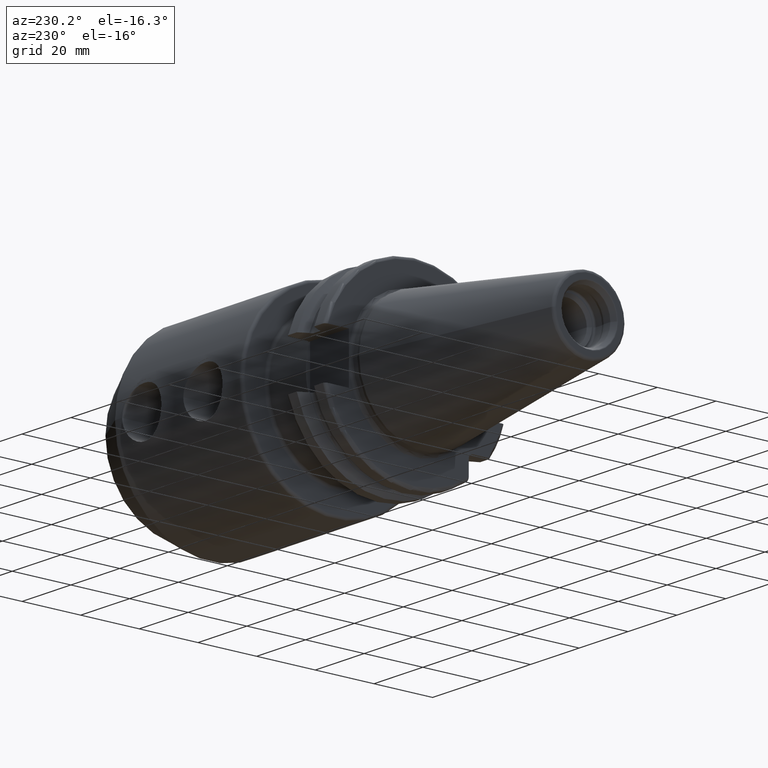
[diagram: clean part render]
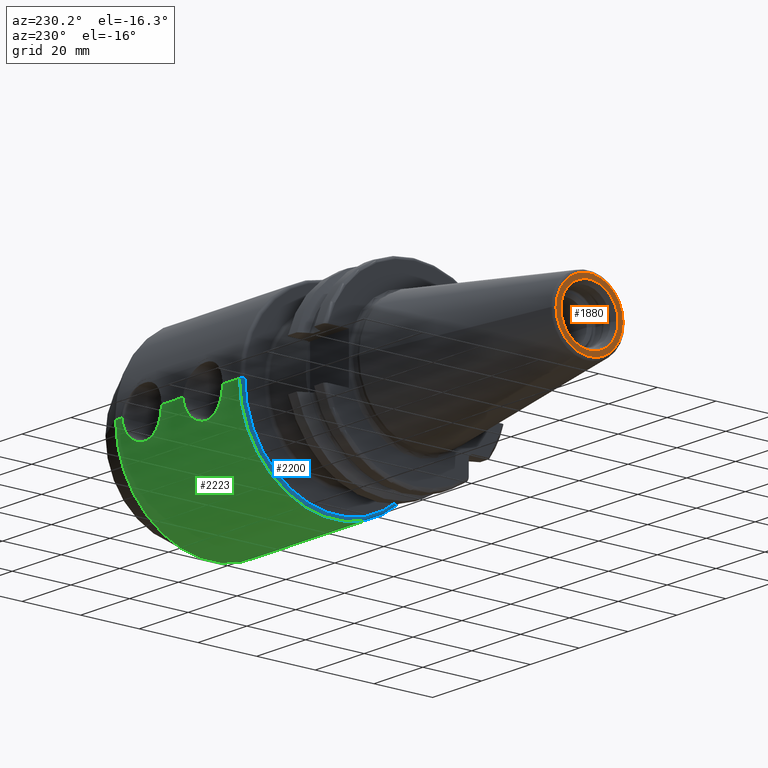
[diagram: same view with three faces highlighted in distinct colors, each labeled with its STEP entity id]
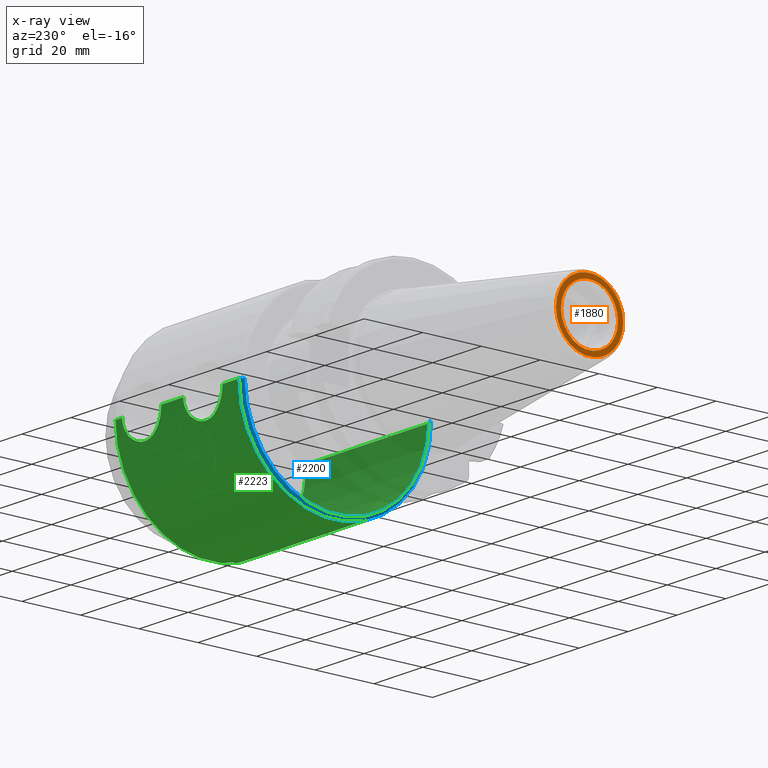
[diagram: x-ray of the same camera — body ghosted, the three highlighted faces saturated]
A machine part, auxiliary view with three faces highlighted in distinct colors.
The next image is the same camera in x-ray (body ghosted, the three faces saturated) — at least one of them is partly hidden behind the body in this view.
Their STEP definitions:

[orange] entity #1880 — the highlighted planar face has unit normal (1, 0, 0).
#2=CARTESIAN_POINT('',(-6.825E1,0.E0,0.E0));
#3=DIRECTION('',(-1.E0,0.E0,0.E0));
#4=DIRECTION('',(0.E0,1.E0,0.E0));
#5=AXIS2_PLACEMENT_3D('',#2,#3,#4);
#7=CARTESIAN_POINT('',(-6.825E1,0.E0,0.E0));
#8=DIRECTION('',(1.E0,0.E0,0.E0));
#9=DIRECTION('',(0.E0,1.E0,0.E0));
#10=AXIS2_PLACEMENT_3D('',#7,#8,#9);
#12=CARTESIAN_POINT('',(-6.825E1,0.E0,0.E0));
#13=DIRECTION('',(1.E0,0.E0,0.E0));
#14=DIRECTION('',(0.E0,1.E0,0.E0));
#15=AXIS2_PLACEMENT_3D('',#12,#13,#14);
#17=CARTESIAN_POINT('',(-6.825E1,0.E0,0.E0));
#18=DIRECTION('',(1.E0,0.E0,0.E0));
#19=DIRECTION('',(0.E0,-1.E0,0.E0));
#20=AXIS2_PLACEMENT_3D('',#17,#18,#19);
#1572=CARTESIAN_POINT('',(-6.825E1,1.144954820082E1,0.E0));
#1574=VERTEX_POINT('',#1572);
#1576=CARTESIAN_POINT('',(-6.825E1,-1.144954820082E1,0.E0));
#1578=VERTEX_POINT('',#1576);
#1635=CARTESIAN_POINT('',(-6.825E1,9.730940107676E0,0.E0));
#1636=CARTESIAN_POINT('',(-6.825E1,-9.730940107676E0,0.E0));
#1637=VERTEX_POINT('',#1635);
#1638=VERTEX_POINT('',#1636);
#1863=CARTESIAN_POINT('',(-6.825E1,0.E0,0.E0));
#1864=DIRECTION('',(1.E0,0.E0,0.E0));
#1865=DIRECTION('',(0.E0,-1.E0,0.E0));
#1866=AXIS2_PLACEMENT_3D('',#1863,#1864,#1865);
#1867=PLANE('',#1866);
#1869=ORIENTED_EDGE('',*,*,#1868,.F.);
#1871=ORIENTED_EDGE('',*,*,#1870,.T.);
#1872=EDGE_LOOP('',(#1869,#1871));
#1873=FACE_OUTER_BOUND('',#1872,.F.);
#1875=ORIENTED_EDGE('',*,*,#1874,.F.);
#1877=ORIENTED_EDGE('',*,*,#1876,.F.);
#1878=EDGE_LOOP('',(#1875,#1877));
#1879=FACE_BOUND('',#1878,.F.);
#1880=ADVANCED_FACE('',(#1873,#1879),#1867,.F.);
#6=CIRCLE('',#5,1.144954820082E1);
#11=CIRCLE('',#10,1.144954820082E1);
#16=CIRCLE('',#15,9.730940107676E0);
#21=CIRCLE('',#20,9.730940107676E0);
#1868=EDGE_CURVE('',#1574,#1578,#6,.T.);
#1870=EDGE_CURVE('',#1574,#1578,#11,.T.);
#1874=EDGE_CURVE('',#1637,#1638,#16,.T.);
#1876=EDGE_CURVE('',#1638,#1637,#21,.T.);

[blue] entity #2200 — the highlighted toroidal blend (fillet) surface has major radius 31.5 mm and minor (blend) radius 1 mm.
#227=CARTESIAN_POINT('',(3.505E1,0.E0,0.E0));
#228=DIRECTION('',(-1.E0,0.E0,0.E0));
#229=DIRECTION('',(0.E0,1.E0,0.E0));
#230=AXIS2_PLACEMENT_3D('',#227,#228,#229);
#237=CARTESIAN_POINT('',(3.605E1,3.15E1,-1.013078509970E-14));
#238=DIRECTION('',(0.E0,0.E0,-1.E0));
#239=DIRECTION('',(-1.E0,1.421085471520E-14,0.E0));
#240=AXIS2_PLACEMENT_3D('',#237,#238,#239);
#270=CARTESIAN_POINT('',(3.605E1,0.E0,0.E0));
#271=DIRECTION('',(-1.E0,0.E0,0.E0));
#272=DIRECTION('',(0.E0,1.E0,0.E0));
#273=AXIS2_PLACEMENT_3D('',#270,#271,#272);
#584=CARTESIAN_POINT('',(3.605E1,-3.15E1,-1.323940956865E-14));
#585=DIRECTION('',(0.E0,0.E0,1.E0));
#586=DIRECTION('',(-1.E0,-1.421085471520E-14,0.E0));
#587=AXIS2_PLACEMENT_3D('',#584,#585,#586);
#1851=CARTESIAN_POINT('',(3.605E1,3.25E1,0.E0));
#1852=CARTESIAN_POINT('',(3.605E1,-3.25E1,0.E0));
#1853=VERTEX_POINT('',#1851);
#1854=VERTEX_POINT('',#1852);
#1855=CARTESIAN_POINT('',(3.505E1,-3.15E1,-1.323940956865E-14));
#1856=VERTEX_POINT('',#1855);
#1857=CARTESIAN_POINT('',(3.505E1,3.15E1,-1.013078509970E-14));
#1858=VERTEX_POINT('',#1857);
#2186=CARTESIAN_POINT('',(3.605E1,0.E0,0.E0));
#2187=DIRECTION('',(1.E0,0.E0,0.E0));
#2188=DIRECTION('',(0.E0,9.999774134407E-1,6.721057089999E-3));
#2189=AXIS2_PLACEMENT_3D('',#2186,#2187,#2188);
#2190=TOROIDAL_SURFACE('',#2189,3.15E1,1.E0);
#2192=ORIENTED_EDGE('',*,*,#2191,.F.);
#2194=ORIENTED_EDGE('',*,*,#2193,.F.);
#2195=ORIENTED_EDGE('',*,*,#2175,.T.);
#2197=ORIENTED_EDGE('',*,*,#2196,.T.);
#2198=EDGE_LOOP('',(#2192,#2194,#2195,#2197));
#2199=FACE_OUTER_BOUND('',#2198,.F.);
#2200=ADVANCED_FACE('',(#2199),#2190,.T.);
#231=CIRCLE('',#230,3.15E1);
#241=CIRCLE('',#240,1.E0);
#274=CIRCLE('',#273,3.25E1);
#588=CIRCLE('',#587,1.E0);
#2175=EDGE_CURVE('',#1858,#1856,#231,.T.);
#2191=EDGE_CURVE('',#1853,#1854,#274,.T.);
#2193=EDGE_CURVE('',#1858,#1853,#241,.T.);
#2196=EDGE_CURVE('',#1856,#1854,#588,.T.);

[green] entity #2223 — the highlighted cylindrical surface (partial cylindrical patch) has radius 32.5 mm, axis along (1, 0, 0).
#242=CARTESIAN_POINT('',(4.3E1,3.25E1,0.E0));
#243=CARTESIAN_POINT('',(4.3E1,3.25E1,-4.211607925237E-1));
#244=CARTESIAN_POINT('',(4.306566554706E1,3.248374352214E1,-1.251295789534E0));
#245=CARTESIAN_POINT('',(4.335689363909E1,3.241330334289E1,-2.470780031314E0));
#246=CARTESIAN_POINT('',(4.383234572711E1,3.230365643009E1,-3.625255161286E0));
#247=CARTESIAN_POINT('',(4.448134108551E1,3.216477714425E1,-4.693540787964E0));
#248=CARTESIAN_POINT('',(4.529249449691E1,3.200895977234E1,-5.652559079808E0));
#249=CARTESIAN_POINT('',(4.624856029835E1,3.185098679766E1,-6.477604941532E0));
#250=CARTESIAN_POINT('',(4.733156499836E1,3.170622043092E1,-7.147215472893E0));
#251=CARTESIAN_POINT('',(4.850396373490E1,3.159115360743E1,-7.635527151395E0));
#252=CARTESIAN_POINT('',(4.972644168798E1,3.151763949042E1,-7.930960809264E0));
#253=CARTESIAN_POINT('',(5.097313976371E1,3.149171997689E1,-8.032394026689E0));
#254=CARTESIAN_POINT('',(5.222151177035E1,3.151554789372E1,-7.939198122224E0));
#255=CARTESIAN_POINT('',(5.344590126246E1,3.158721119064E1,-7.651678650857E0));
#256=CARTESIAN_POINT('',(5.461988452941E1,3.170061114049E1,-7.171800860271E0));
#257=CARTESIAN_POINT('',(5.570744593817E1,3.184436257007E1,-6.509901704183E0));
#258=CARTESIAN_POINT('',(5.667505187336E1,3.200307287515E1,-5.685894493939E0));
#259=CARTESIAN_POINT('',(5.749782966269E1,3.216048522647E1,-4.723250829945E0));
#260=CARTESIAN_POINT('',(5.815609113715E1,3.230105000219E1,-3.649039952936E0));
#261=CARTESIAN_POINT('',(5.863784720303E1,3.241204489961E1,-2.488359951480E0));
#262=CARTESIAN_POINT('',(5.893329270823E1,3.248348402742E1,-1.260893721837E0));
#263=CARTESIAN_POINT('',(5.9E1,3.25E1,-4.245227125784E-1));
#264=CARTESIAN_POINT('',(5.9E1,3.25E1,0.E0));
#266=DIRECTION('',(-1.E0,0.E0,5.352652773454E-13));
#267=VECTOR('',#266,6.95E0);
#268=CARTESIAN_POINT('',(4.3E1,3.25E1,0.E0));
#269=LINE('',#268,#267);
#270=CARTESIAN_POINT('',(3.605E1,0.E0,0.E0));
#271=DIRECTION('',(-1.E0,0.E0,0.E0));
#272=DIRECTION('',(0.E0,1.E0,0.E0));
#273=AXIS2_PLACEMENT_3D('',#270,#271,#272);
#275=DIRECTION('',(-1.E0,0.E0,-1.032882662058E-13));
#276=VECTOR('',#275,5.068205080757E1);
#277=CARTESIAN_POINT('',(8.673205080757E1,-3.25E1,1.509499505450E-12));
#278=LINE('',#277,#276);
#279=CARTESIAN_POINT('',(8.673205080757E1,0.E0,0.E0));
#280=DIRECTION('',(-1.E0,0.E0,0.E0));
#281=DIRECTION('',(0.E0,1.E0,0.E0));
#282=AXIS2_PLACEMENT_3D('',#279,#280,#281);
#284=DIRECTION('',(-1.E0,0.E0,5.562491837532E-13));
#285=VECTOR('',#284,2.732050807569E0);
#286=CARTESIAN_POINT('',(8.673205080757E1,3.25E1,-1.517710980634E-12));
#287=LINE('',#286,#285);
#288=CARTESIAN_POINT('',(6.8E1,3.25E1,0.E0));
#289=CARTESIAN_POINT('',(6.8E1,3.25E1,-4.211607925237E-1));
#290=CARTESIAN_POINT('',(6.806566554706E1,3.248374352214E1,-1.251295789534E0));
#291=CARTESIAN_POINT('',(6.835689363909E1,3.241330334289E1,-2.470780031314E0));
#292=CARTESIAN_POINT('',(6.883234572711E1,3.230365643009E1,-3.625255161286E0));
#293=CARTESIAN_POINT('',(6.948134108551E1,3.216477714425E1,-4.693540787964E0));
#294=CARTESIAN_POINT('',(7.029249449691E1,3.200895977234E1,-5.652559079808E0));
#295=CARTESIAN_POINT('',(7.124856029835E1,3.185098679766E1,-6.477604941532E0));
#296=CARTESIAN_POINT('',(7.233156499836E1,3.170622043092E1,-7.147215472893E0));
#297=CARTESIAN_POINT('',(7.350396373490E1,3.159115360743E1,-7.635527151395E0));
#298=CARTESIAN_POINT('',(7.472644168798E1,3.151763949042E1,-7.930960809264E0));
#299=CARTESIAN_POINT('',(7.597313976371E1,3.149171997689E1,-8.032394026689E0));
#300=CARTESIAN_POINT('',(7.722151177035E1,3.151554789372E1,-7.939198122224E0));
#301=CARTESIAN_POINT('',(7.844590126246E1,3.158721119064E1,-7.651678650857E0));
#302=CARTESIAN_POINT('',(7.961988452941E1,3.170061114049E1,-7.171800860271E0));
#303=CARTESIAN_POINT('',(8.070744593817E1,3.184436257007E1,-6.509901704183E0));
#304=CARTESIAN_POINT('',(8.167505187336E1,3.200307287515E1,-5.685894493939E0));
#305=CARTESIAN_POINT('',(8.249782966269E1,3.216048522647E1,-4.723250829945E0));
#306=CARTESIAN_POINT('',(8.315609113715E1,3.230105000219E1,-3.649039952936E0));
#307=CARTESIAN_POINT('',(8.363784720303E1,3.241204489961E1,-2.488359951480E0));
#308=CARTESIAN_POINT('',(8.393329270823E1,3.248348402742E1,-1.260893721837E0));
#309=CARTESIAN_POINT('',(8.4E1,3.25E1,-4.245227125784E-1));
#310=CARTESIAN_POINT('',(8.4E1,3.25E1,0.E0));
#312=DIRECTION('',(-1.E0,0.E0,0.E0));
#313=VECTOR('',#312,9.E0);
#314=CARTESIAN_POINT('',(6.8E1,3.25E1,0.E0));
#315=LINE('',#314,#313);
#324=CARTESIAN_POINT('',(5.9E1,3.25E1,0.E0));
#346=CARTESIAN_POINT('',(4.3E1,3.25E1,0.E0));
#348=CARTESIAN_POINT('',(8.4E1,3.25E1,0.E0));
#370=CARTESIAN_POINT('',(6.8E1,3.25E1,0.E0));
#1792=CARTESIAN_POINT('',(8.673205080757E1,3.25E1,0.E0));
#1793=CARTESIAN_POINT('',(8.673205080757E1,-3.25E1,0.E0));
#1794=VERTEX_POINT('',#1792);
#1795=VERTEX_POINT('',#1793);
#1817=VERTEX_POINT('',#348);
#1818=VERTEX_POINT('',#370);
#1851=CARTESIAN_POINT('',(3.605E1,3.25E1,0.E0));
#1852=CARTESIAN_POINT('',(3.605E1,-3.25E1,0.E0));
#1853=VERTEX_POINT('',#1851);
#1854=VERTEX_POINT('',#1852);
#1859=VERTEX_POINT('',#324);
#1860=VERTEX_POINT('',#346);
#2201=CARTESIAN_POINT('',(1.50025E1,0.E0,0.E0));
#2202=DIRECTION('',(1.E0,0.E0,0.E0));
#2203=DIRECTION('',(0.E0,-1.E0,0.E0));
#2204=AXIS2_PLACEMENT_3D('',#2201,#2202,#2203);
#2205=CYLINDRICAL_SURFACE('',#2204,3.25E1);
#2207=ORIENTED_EDGE('',*,*,#2206,.F.);
#2209=ORIENTED_EDGE('',*,*,#2208,.T.);
#2210=ORIENTED_EDGE('',*,*,#2191,.T.);
#2212=ORIENTED_EDGE('',*,*,#2211,.F.);
#2214=ORIENTED_EDGE('',*,*,#2213,.F.);
#2216=ORIENTED_EDGE('',*,*,#2215,.T.);
#2218=ORIENTED_EDGE('',*,*,#2217,.F.);
#2220=ORIENTED_EDGE('',*,*,#2219,.T.);
#2221=EDGE_LOOP('',(#2207,#2209,#2210,#2212,#2214,#2216,#2218,#2220));
#2222=FACE_OUTER_BOUND('',#2221,.F.);
#2223=ADVANCED_FACE('',(#2222),#2205,.T.);
#265=B_SPLINE_CURVE_WITH_KNOTS('',3,(#242,#243,#244,#245,#246,#247,#248,#249,
#250,#251,#252,#253,#254,#255,#256,#257,#258,#259,#260,#261,#262,#263,#264),
.UNSPECIFIED.,.F.,.F.,(4,1,1,1,1,1,1,1,1,1,1,1,1,1,1,1,1,1,1,1,4),(0.E0,5.E-2,
1.E-1,1.5E-1,2.E-1,2.5E-1,3.E-1,3.5E-1,4.E-1,4.5E-1,5.E-1,5.5E-1,6.E-1,6.5E-1,
7.E-1,7.5E-1,8.E-1,8.5E-1,9.E-1,9.5E-1,1.E0),.UNSPECIFIED.);
#274=CIRCLE('',#273,3.25E1);
#283=CIRCLE('',#282,3.25E1);
#311=B_SPLINE_CURVE_WITH_KNOTS('',3,(#288,#289,#290,#291,#292,#293,#294,#295,
#296,#297,#298,#299,#300,#301,#302,#303,#304,#305,#306,#307,#308,#309,#310),
.UNSPECIFIED.,.F.,.F.,(4,1,1,1,1,1,1,1,1,1,1,1,1,1,1,1,1,1,1,1,4),(0.E0,5.E-2,
1.E-1,1.5E-1,2.E-1,2.5E-1,3.E-1,3.5E-1,4.E-1,4.5E-1,5.E-1,5.5E-1,6.E-1,6.5E-1,
7.E-1,7.5E-1,8.E-1,8.5E-1,9.E-1,9.5E-1,1.E0),.UNSPECIFIED.);
#2191=EDGE_CURVE('',#1853,#1854,#274,.T.);
#2206=EDGE_CURVE('',#1860,#1859,#265,.T.);
#2208=EDGE_CURVE('',#1860,#1853,#269,.T.);
#2211=EDGE_CURVE('',#1795,#1854,#278,.T.);
#2213=EDGE_CURVE('',#1794,#1795,#283,.T.);
#2215=EDGE_CURVE('',#1794,#1817,#287,.T.);
#2217=EDGE_CURVE('',#1818,#1817,#311,.T.);
#2219=EDGE_CURVE('',#1818,#1859,#315,.T.);